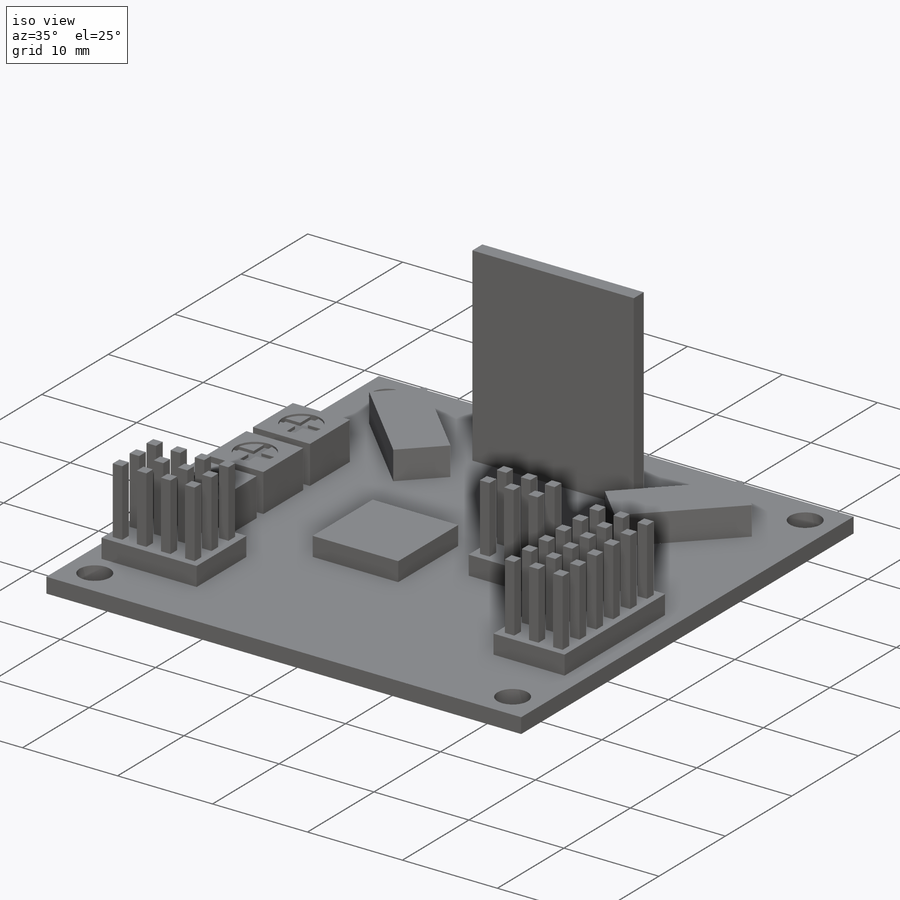
[diagram: iso view]
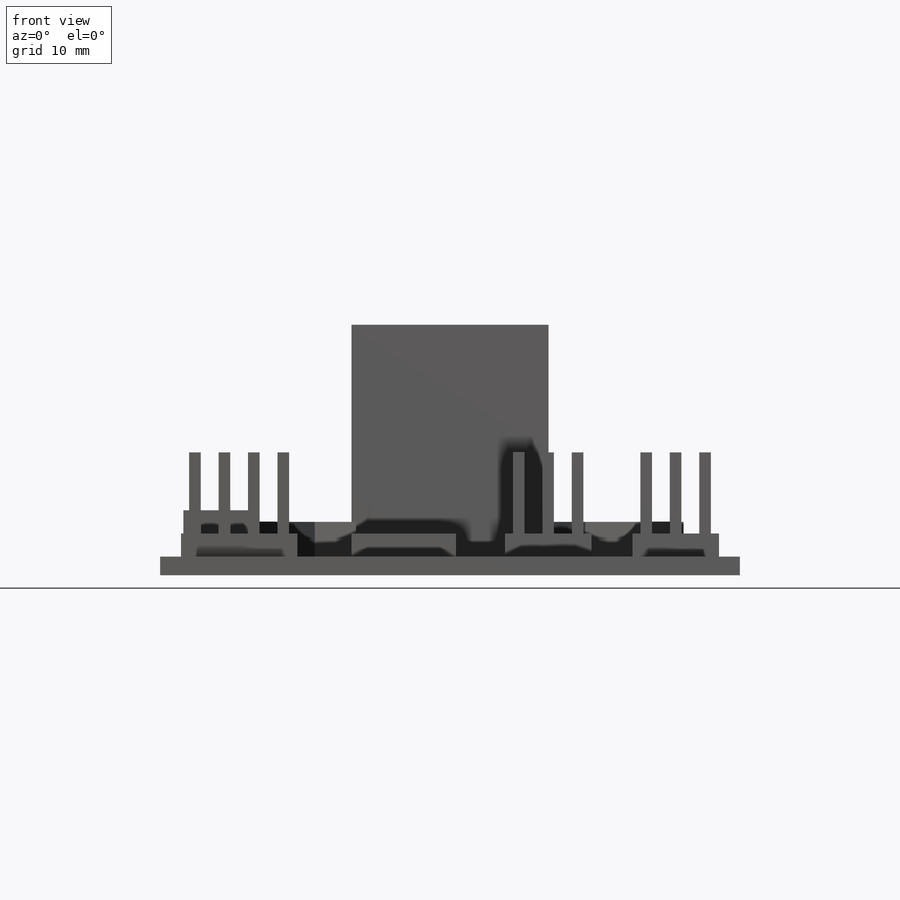
[diagram: front view]
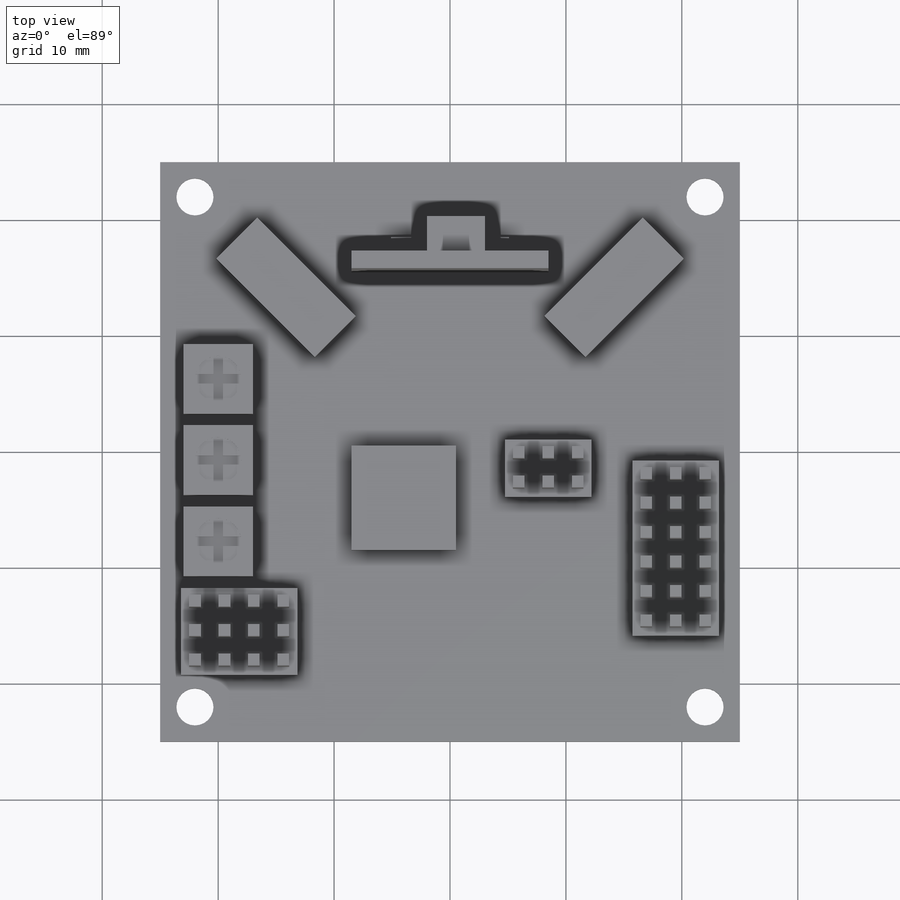
[diagram: top view]
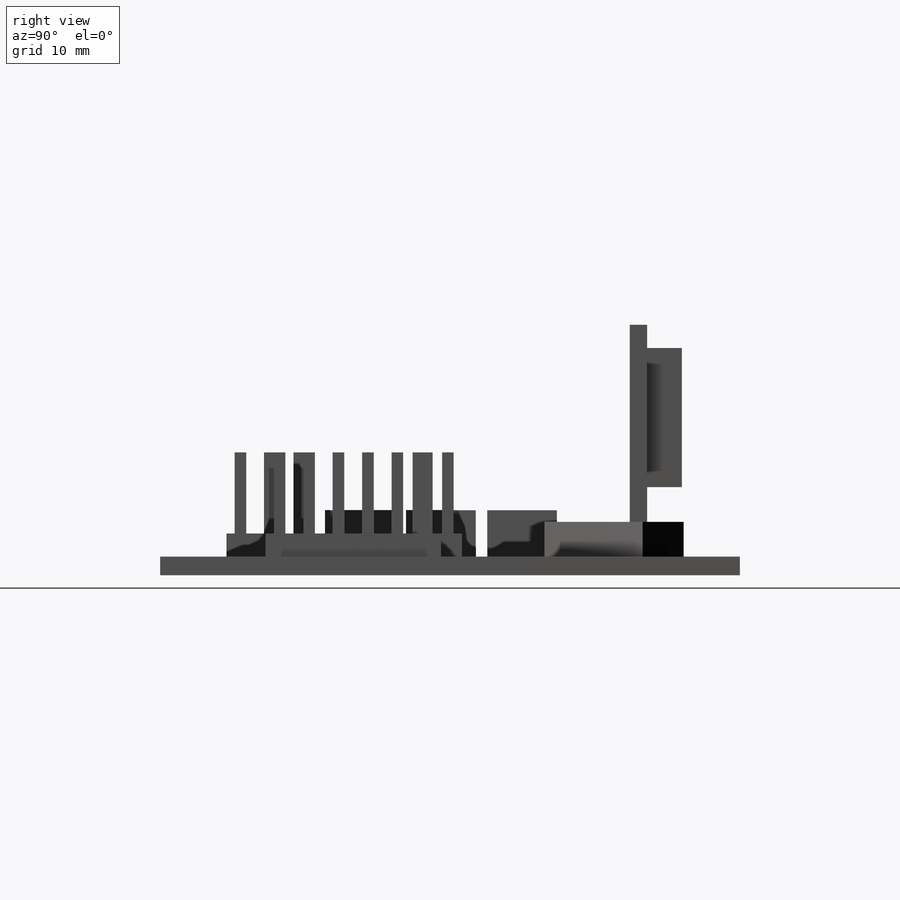
[diagram: right view]
SOLIDWORKS PART (.sldprt)
format: sldprt  version: not decoded by parser v0  size: 792,064 bytes
history: native  units: mm
features: sketch x11, extrude x9, cut_extrude x2, material x1 (+13 scaffold rows collapsed)
feature tree (36):
  scaffold x13  (default folders/planes/origin — collapsed)
  material  "Material <not specified>"
  sketch  "Sketch1"  dims[c1.D2=3.2mm c1.D3=3.2mm c1.D1=50.0mm c2.D3=22.0mm c2.D4=4.0]
  extrude  "Boss-Extrude1"  Depth=1.6mm
  sketch  "Sketch2"  dims[D1=20.0mm D2=6.0mm D3=1.0mm D4=1.0mm]
  extrude  "Boss-Extrude2"  Depth=4mm
  sketch  "Sketch3"  dims[D1=4.0mm]
  cut_extrude  "Cut-Extrude1"  Depth=0.2mm
  sketch  "Sketch4"  dims[D3=0.8mm D1=0.0mm D4=3.0 D2=4.0]
  cut_extrude  "Cut-Extrude2"  Depth=0.5mm
  sketch  "Sketch5"  dims[D1=17.0mm D2=0.0mm D3=8.0mm D4=1.5mm]
  extrude  "Boss-Extrude3"  Depth=20mm
  sketch  "Sketch6"  dims[D1=10.16mm]
  extrude  "Boss-Extrude4"  Depth=2mm
  sketch  "Sketch7"  dims[D1=5.0mm D2=12.0mm D3=20.0mm]
  extrude  "Boss-Extrude5"  Depth=3mm
  sketch  "Sketch8"  dims[D1=5.0mm D2=12.0mm D3=8.0mm D4=2.0mm]
  extrude  "Boss-Extrude6"  Depth=3mm
  sketch  "Sketch9"  dims[D1=9.0mm D2=4.0mm D3=4.0mm]
  extrude  "Boss-Extrude7"  Depth=2mm
  sketch  "Sketch10"  dims[D1=1.0mm D2=1.0mm D5=12.0mm D6=3.0mm D7=3.0mm D10=2.0mm D11=14.0mm D3=4.0 D4=3.0 D8=3.0 D9=6.0 D12=3.0 D13=2.0]
  extrude  "Boss-Extrude8"  Depth=9mm
  sketch  "Sketch11"  dims[D1=0.7mm D2=0.7mm D3=0.7mm D4=0.7mm D5=0.7mm D6=0.7mm D7=0.7mm D8=0.7mm D9=0.7mm D10=0.7mm D11=0.7mm D12=0.7mm]
  extrude  "Boss-Extrude10"  Depth=2mm
decode coverage: 22 of 22 modeling features carry decoded parameters
note: suppression state not decoded; provenance and decode notes live in map.json
